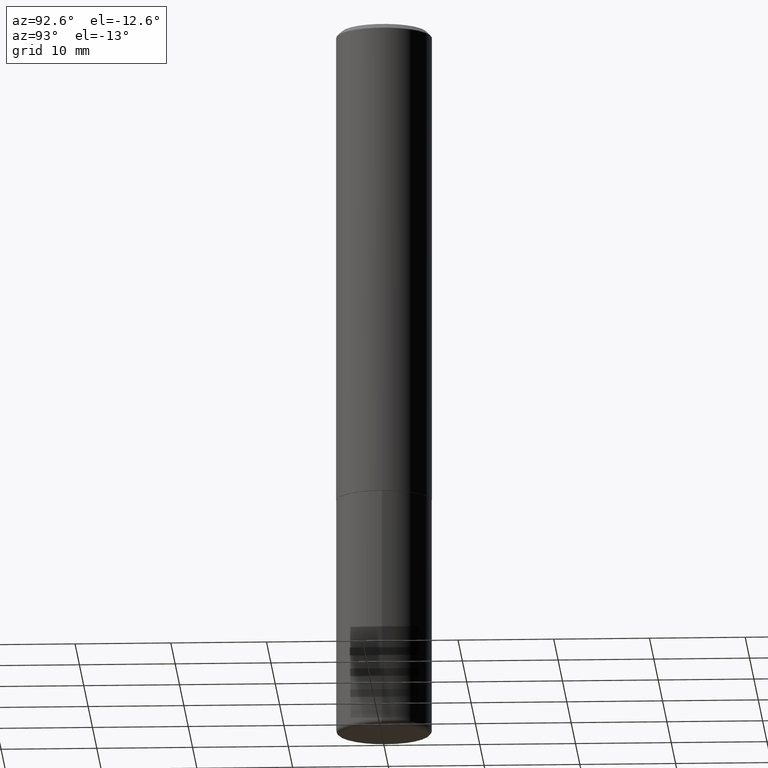
[diagram: clean part render]
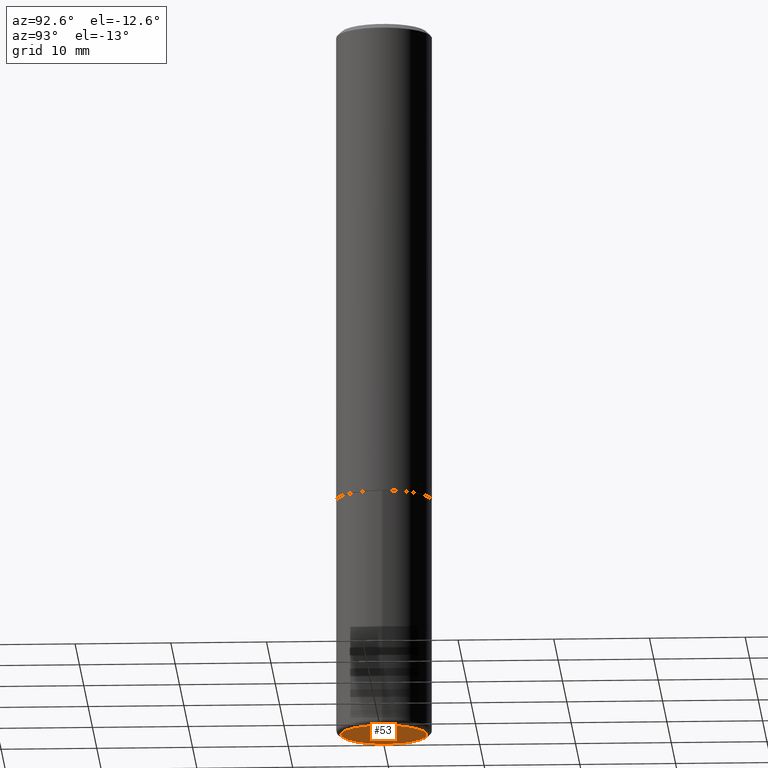
[diagram: same view with one face highlighted and labeled with its STEP entity id]
A machine part, auxiliary view. The second image highlights one B-rep face of the part: STEP entity #53.
In plain terms, the highlighted planar face has unit normal (0, -0, -1).
Its self-contained STEP definition (entity closure, byte-faithful):
#10 = AXIS2_PLACEMENT_3D ( 'NONE', #286, #34, #356 ) ;
#11 = CIRCLE ( 'NONE', #243, 0.1771500000000000019 ) ;
#13 = DIRECTION ( 'NONE',  ( 1.000000000000000000, -6.982962677686272233E-15, 0.000000000000000000 ) ) ;
#34 = DIRECTION ( 'NONE',  ( 2.438088387897960049E-29, -3.491481338843145188E-15, -1.000000000000000000 ) ) ;
#38 = CARTESIAN_POINT ( 'NONE',  ( 0.1771500000000000019, -1.154667793568816250E-14, -2.952799999999999869 ) ) ;
#49 = DIRECTION ( 'NONE',  ( 1.000000000000000000, -6.982962677686272233E-15, 0.000000000000000000 ) ) ;
#52 = ORIENTED_EDGE ( 'NONE', *, *, #358, .F. ) ;
#53 = ADVANCED_FACE ( 'NONE', ( #294 ), #229, .T. ) ;
#59 = ORIENTED_EDGE ( 'NONE', *, *, #114, .F. ) ;
#62 = VERTEX_POINT ( 'NONE', #38 ) ;
#64 = CARTESIAN_POINT ( 'NONE',  ( 7.220980290903470182E-29, -1.030964609733603853E-14, -2.952799999999999869 ) ) ;
#68 = CIRCLE ( 'NONE', #413, 0.1771500000000000019 ) ;
#114 = EDGE_CURVE ( 'NONE', #348, #62, #68, .T. ) ;
#166 = DIRECTION ( 'NONE',  ( -2.445468806185136597E-29, 3.491481338843145583E-15, 1.000000000000000000 ) ) ;
#179 = CARTESIAN_POINT ( 'NONE',  ( -0.1771500000000000019, -8.946540090277048352E-15, -2.952799999999999869 ) ) ;
#229 = PLANE ( 'NONE',  #10 ) ;
#243 = AXIS2_PLACEMENT_3D ( 'NONE', #306, #273, #49 ) ;
#273 = DIRECTION ( 'NONE',  ( -2.445468806185136597E-29, 3.491481338843145583E-15, 1.000000000000000000 ) ) ;
#286 = CARTESIAN_POINT ( 'NONE',  ( 7.220980290903470182E-29, -1.030964609733603853E-14, -2.952799999999999869 ) ) ;
#294 = FACE_OUTER_BOUND ( 'NONE', #311, .T. ) ;
#306 = CARTESIAN_POINT ( 'NONE',  ( 7.220980290903470182E-29, -1.030964609733603853E-14, -2.952799999999999869 ) ) ;
#311 = EDGE_LOOP ( 'NONE', ( #52, #59 ) ) ;
#348 = VERTEX_POINT ( 'NONE', #179 ) ;
#356 = DIRECTION ( 'NONE',  ( -1.000000000000000000, 6.982962677686265922E-15, -4.876176775795935793E-29 ) ) ;
#358 = EDGE_CURVE ( 'NONE', #62, #348, #11, .T. ) ;
#413 = AXIS2_PLACEMENT_3D ( 'NONE', #64, #166, #13 ) ;